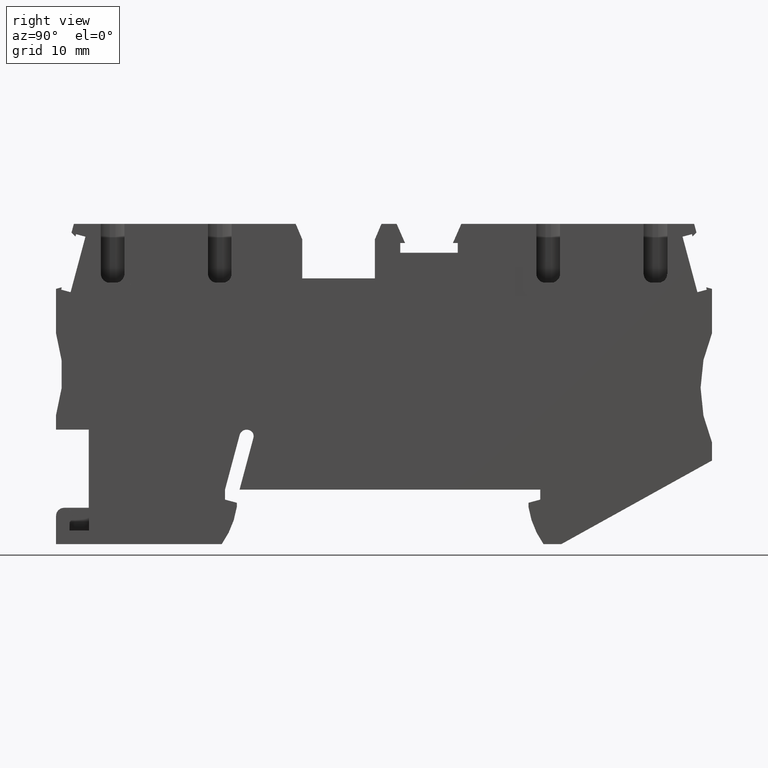
[diagram: clean part render]
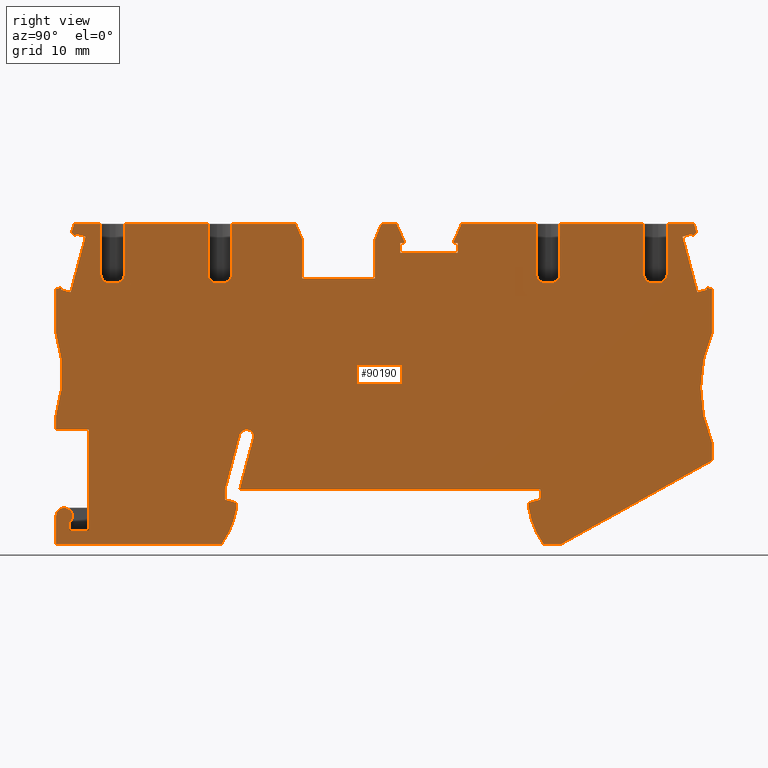
[diagram: same view with one face highlighted and labeled with its STEP entity id]
A machine part, right view. The second image highlights one B-rep face of the part: STEP entity #90190.
In plain terms, the highlighted planar face has unit normal (1, -0, 0).
Its self-contained STEP definition (entity closure, byte-faithful):
#4920=CARTESIAN_POINT('',(0.0996055945110055,1.34043887101115E-11,
-3.05714372167745E-12));
#4930=DIRECTION('',(-0.121869343404765,0.99254615164137,
-1.4243280301214E-16));
#4940=VECTOR('',#4930,1.);
#4950=LINE('',#4920,#4940);
#4960=CARTESIAN_POINT('',(0.849796820884327,-6.10981723481752,
-1.17013918668792E-11));
#4970=VERTEX_POINT('',#4960);
#4980=CARTESIAN_POINT('',(0.47200185633097,-3.03292416474079,
-1.01989730774415E-11));
#4990=VERTEX_POINT('',#4980);
#5000=EDGE_CURVE('',#4970,#4990,#4950,.T.);
#6190=CARTESIAN_POINT('',(18.5799394874171,2.11222950000028,
-6.91335246068546E-12));
#6200=VERTEX_POINT('',#6190);
#6280=CARTESIAN_POINT('',(18.7139957651638,1.02042873318665,
-7.4465475953517E-12));
#6290=VERTEX_POINT('',#6280);
#6320=CARTESIAN_POINT('',(18.8392886590992,1.34043887101098E-11,
1.23938216590528E-12));
#6330=DIRECTION('',(0.121869343405148,-0.992546151641323,
1.42432803101199E-16));
#6340=VECTOR('',#6330,1.);
#6350=LINE('',#6320,#6340);
#6360=EDGE_CURVE('',#6200,#6290,#6350,.T.);
#6590=CARTESIAN_POINT('',(20.0467569920886,0.833121357895516,
-7.48401597946455E-12));
#6600=VERTEX_POINT('',#6590);
#6630=CARTESIAN_POINT('',(-1.08928421838074E-11,3.65050931864335,
-2.97773787117071E-12));
#6640=DIRECTION('',(0.990268068741556,-0.139173100960171,
2.23144985081254E-13));
#6650=VECTOR('',#6640,1.);
#6660=LINE('',#6630,#6650);
#6670=EDGE_CURVE('',#6290,#6600,#6660,.T.);
#6920=CARTESIAN_POINT('',(2.04257352465865,-3.51594034939669,
-1.03725461567974E-11));
#6930=VERTEX_POINT('',#6920);
#6960=CARTESIAN_POINT('',(1.36529339280604,-2.92324175567689,
-1.01080197414662E-11));
#6970=DIRECTION('',(-1.01679311254639E-12,-5.31871749092456E-13,1.));
#6980=DIRECTION('',(0.992546151641275,0.12186934340553,
1.07403295171113E-12));
#6990=AXIS2_PLACEMENT_3D('',#6960,#6970,#6980);
#7000=CIRCLE('',#6990,0.89999999999984);
#7010=EDGE_CURVE('',#6930,#4990,#7000,.T.);
#7240=CARTESIAN_POINT('',(2.88740923988853,6.83499391212256,
-5.23007061684476E-12));
#7250=VERTEX_POINT('',#7240);
#7280=CARTESIAN_POINT('',(3.72664096616088,1.34043887101112E-11,
-2.22555807981994E-12));
#7290=DIRECTION('',(-0.121869343405148,0.992546151641323,
-1.42432803101199E-16));
#7300=VECTOR('',#7290,1.);
#7310=LINE('',#7280,#7300);
#7320=CARTESIAN_POINT('',(4.24015895168713,-4.18226837110801,
-1.06107162930473E-11));
#7330=VERTEX_POINT('',#7320);
#7340=EDGE_CURVE('',#7330,#7250,#7310,.T.);
#7640=CARTESIAN_POINT('',(-0.685756599584927,6.39626431348954,
-5.59388392954687E-12));
#7650=VERTEX_POINT('',#7640);
#7680=CARTESIAN_POINT('',(-1.08928421838074E-11,6.48046463645451,
-2.89847696423797E-12));
#7690=DIRECTION('',(-0.992546151641323,-0.121869343405148,
-2.30978523078026E-13));
#7700=VECTOR('',#7690,1.);
#7710=LINE('',#7680,#7700);
#7720=EDGE_CURVE('',#7250,#7650,#7710,.T.);
#7890=CARTESIAN_POINT('',(0.0996059055641723,1.34043887101115E-11,
-3.05714365036098E-12));
#7900=DIRECTION('',(-0.12186934340515,0.992546151641322,
-1.42432803101704E-16));
#7910=VECTOR('',#7900,1.);
#7920=LINE('',#7890,#7910);
#7930=CARTESIAN_POINT('',(-0.880747549032938,7.98433815611375,
-7.77407459178503E-13));
#7940=VERTEX_POINT('',#7930);
#7950=EDGE_CURVE('',#7650,#7940,#7920,.T.);
#8260=CARTESIAN_POINT('',(-1.97757163967912,16.9172535208853,
-7.78689354406393E-13));
#8270=VERTEX_POINT('',#8260);
#8300=CARTESIAN_POINT('',(-15.6315898433489,10.706956676623,
-6.36402238779349E-12));
#8310=DIRECTION('',(-2.29274202385084E-13,-2.80078298176235E-14,1.));
#8320=DIRECTION('',(0.992546151641323,0.121869343405148,
2.30978523078026E-13));
#8330=AXIS2_PLACEMENT_3D('',#8300,#8310,#8320);
#8340=CIRCLE('',#8330,15.);
#8350=EDGE_CURVE('',#7940,#8270,#8340,.T.);
#8570=CARTESIAN_POINT('',(-2.57472175472289,21.7806509273066,
1.91928178863762E-12));
#8580=VERTEX_POINT('',#8570);
#8610=CARTESIAN_POINT('',(0.0996059055642893,1.34043887101115E-11,
-3.05714365036095E-12));
#8620=DIRECTION('',(-0.12186934340515,0.992546151641322,
-1.42432803101704E-16));
#8630=VECTOR('',#8620,1.);
#8640=LINE('',#8610,#8630);
#8650=EDGE_CURVE('',#8270,#8580,#8640,.T.);
#8830=CARTESIAN_POINT('',(-1.0892842183807E-11,22.8209060404169,
-2.44081666225094E-12));
#8840=DIRECTION('',(-0.927183854569499,-0.374606593409201,
-2.23071256437514E-13));
#8850=VECTOR('',#8840,1.);
#8860=LINE('',#8830,#8850);
#8870=CARTESIAN_POINT('',(-1.96144346353966,22.0284314406748,
2.06683047413682E-12));
#8880=VERTEX_POINT('',#8870);
#8890=EDGE_CURVE('',#8880,#8580,#8860,.T.);
#9180=CARTESIAN_POINT('',(-0.93975452603534,21.6098586805649,
1.90242329370994E-12));
#9190=VERTEX_POINT('',#9180);
#9220=CARTESIAN_POINT('',(-1.08928421838071E-11,21.4777847950618,
-2.47843457351528E-12));
#9230=DIRECTION('',(-0.990268068741539,0.13917310096029,
-2.23144985081247E-13));
#9240=VECTOR('',#9230,1.);
#9250=LINE('',#9220,#9240);
#9260=CARTESIAN_POINT('',(-1.99934135958794,21.7587738985923,
1.93221183022983E-12));
#9270=VERTEX_POINT('',#9260);
#9280=EDGE_CURVE('',#9190,#9270,#9250,.T.);
#9550=CARTESIAN_POINT('',(-5.0573376054108,1.3404388710112E-11,
-4.2394977605847E-12));
#9560=DIRECTION('',(0.139173100960779,0.990268068741471,
5.96440612593796E-14));
#9570=VECTOR('',#9560,1.);
#9580=LINE('',#9550,#9570);
#9590=EDGE_CURVE('',#9270,#8880,#9580,.T.);
#9810=CARTESIAN_POINT('',(-0.0594846624616271,27.8733042153554,
5.02926535259254E-12));
#9820=VERTEX_POINT('',#9810);
#9850=CARTESIAN_POINT('',(-3.9768221028052,1.34043887101119E-11,
-3.99176343056008E-12));
#9860=DIRECTION('',(0.139173100960265,0.990268068741543,
5.96440612592639E-14));
#9870=VECTOR('',#9860,1.);
#9880=LINE('',#9850,#9870);
#9890=EDGE_CURVE('',#9190,#9820,#9880,.T.);
#10070=CARTESIAN_POINT('',(-5.59254621884186,1.3404388710112E-11,
-4.36220728853874E-12));
#10080=DIRECTION('',(-0.139173100960491,-0.990268068741511,
-5.96440612593149E-14));
#10090=VECTOR('',#10080,1.);
#10100=LINE('',#10070,#10090);
#10110=CARTESIAN_POINT('',(-1.50051398890416,29.1163222318416,
5.58318439857515E-12));
#10120=VERTEX_POINT('',#10110);
#10130=CARTESIAN_POINT('',(-1.6392251060262,28.1293413489164,
5.09046304913553E-12));
#10140=VERTEX_POINT('',#10130);
#10150=EDGE_CURVE('',#10120,#10140,#10100,.T.);
#10510=CARTESIAN_POINT('',(13.8245185472176,25.4566955825832,
4.40932910289932E-12));
#10520=VERTEX_POINT('',#10510);
#10550=CARTESIAN_POINT('',(16.9502077363593,1.34043887101105E-11,
-1.89071336354901E-11));
#10560=DIRECTION('',(-0.121869343405031,0.992546151641337,
1.32861270455409E-15));
#10570=VECTOR('',#10560,1.);
#10580=LINE('',#10550,#10570);
#10590=CARTESIAN_POINT('',(13.1542371584895,30.9156994166138,
7.07530477621219E-12));
#10600=VERTEX_POINT('',#10590);
#10610=EDGE_CURVE('',#10520,#10600,#10580,.T.);
#11140=CARTESIAN_POINT('',(14.9389340422461,24.5860187743828,
4.02566958960332E-12));
#11150=VERTEX_POINT('',#11140);
#13080=CARTESIAN_POINT('',(15.5344617332345,24.6591403803883,
4.56970599959838E-12));
#13090=VERTEX_POINT('',#13080);
#13760=CARTESIAN_POINT('',(16.4051385414707,25.7735558754347,
5.64505687412114E-12));
#13770=VERTEX_POINT('',#13760);
#13800=CARTESIAN_POINT('',(15.4125923898294,25.6516865320296,
1.17217718287625E-12));
#13810=DIRECTION('',(-1.06586665856897E-12,-1.32199789835444E-13,1.));
#13820=DIRECTION('',(1.,4.16333633072279E-17,1.06586665856897E-12));
#13830=AXIS2_PLACEMENT_3D('',#13800,#13810,#13820);
#13840=CIRCLE('',#13830,1.);
#13850=EDGE_CURVE('',#13090,#13770,#13840,.T.);
#14070=CARTESIAN_POINT('',(15.734857152757,31.2325597094668,
7.33805885791961E-12));
#14080=VERTEX_POINT('',#14070);
#14110=CARTESIAN_POINT('',(19.5697332825523,1.34043887101102E-11,
-1.61150686945334E-11));
#14120=DIRECTION('',(0.121869343405031,-0.992546151641337,
-1.32861270455409E-15));
#14130=VECTOR('',#14120,1.);
#14140=LINE('',#14110,#14130);
#14150=EDGE_CURVE('',#14080,#13770,#14140,.T.);
#22870=CARTESIAN_POINT('',(-1.08928421838071E-11,22.7517483176637,
-2.44275361998039E-12));
#22880=DIRECTION('',(-0.992546151641501,-0.121869343403698,
-2.30978523078026E-13));
#22890=VECTOR('',#22880,1.);
#22900=LINE('',#22870,#22890);
#22910=EDGE_CURVE('',#13090,#11150,#22900,.T.);
#23870=CARTESIAN_POINT('',(14.8170646988446,25.5785649259865,
1.03359006902944E-12));
#23880=DIRECTION('',(-1.06586665856897E-12,-1.32199789835444E-13,1.));
#23890=DIRECTION('',(1.,4.16333633072279E-17,1.06586665856897E-12));
#23900=AXIS2_PLACEMENT_3D('',#23870,#23880,#23890);
#23910=CIRCLE('',#23900,1.);
#23920=EDGE_CURVE('',#10520,#11150,#23910,.T.);
#24160=CARTESIAN_POINT('',(2.11247365141296,24.0186372927825,
2.24385608828192E-12));
#24170=VERTEX_POINT('',#24160);
#24200=CARTESIAN_POINT('',(5.06159179594505,1.34043887101119E-11,
-3.16787329268376E-11));
#24210=DIRECTION('',(-0.121869343405031,0.992546151641337,
1.32861270455409E-15));
#24220=VECTOR('',#24210,1.);
#24230=LINE('',#24200,#24220);
#24240=CARTESIAN_POINT('',(1.44219256912173,29.4776411644345,
5.88280548230931E-12));
#24250=VERTEX_POINT('',#24240);
#24260=EDGE_CURVE('',#24170,#24250,#24230,.T.);
#24790=CARTESIAN_POINT('',(3.22688945289093,23.1479605222216,
-1.60147458294547E-12));
#24800=VERTEX_POINT('',#24790);
#26730=CARTESIAN_POINT('',(3.82241714387358,23.2210821282714,
2.89383400005284E-12));
#26740=VERTEX_POINT('',#26730);
#27410=CARTESIAN_POINT('',(4.69309395211675,24.3354976232614,
3.47958389070599E-12));
#27420=VERTEX_POINT('',#27410);
#27450=CARTESIAN_POINT('',(3.7005474940391,24.2136282422307,
-1.55336946075288E-12));
#27460=DIRECTION('',(-1.06586665856897E-12,-1.32199789835444E-13,1.));
#27470=DIRECTION('',(1.,4.16333633072279E-17,1.06586665856897E-12));
#27480=AXIS2_PLACEMENT_3D('',#27450,#27460,#27470);
#27490=CIRCLE('',#27480,1.);
#27500=EDGE_CURVE('',#26740,#27420,#27490,.T.);
#27740=CARTESIAN_POINT('',(4.02281256338922,29.7945014572876,
6.14555956401672E-12));
#27750=VERTEX_POINT('',#27740);
#27780=CARTESIAN_POINT('',(7.68111734213804,1.34043887101116E-11,
-2.88866679858808E-11));
#27790=DIRECTION('',(0.121869343405031,-0.992546151641337,
-1.32861270455409E-15));
#27800=VECTOR('',#27790,1.);
#27810=LINE('',#27780,#27800);
#27820=EDGE_CURVE('',#27750,#27420,#27810,.T.);
#36520=CARTESIAN_POINT('',(-1.08928421838071E-11,22.7517483176697,
-2.44275361998022E-12));
#36530=DIRECTION('',(-0.992546151641501,-0.121869343403698,
-2.30978523078026E-13));
#36540=VECTOR('',#36530,1.);
#36550=LINE('',#36520,#36540);
#36560=EDGE_CURVE('',#26740,#24800,#36550,.T.);
#37520=CARTESIAN_POINT('',(3.10501980305429,24.1405066361876,
-1.6919565745997E-12));
#37530=DIRECTION('',(-1.06586665856897E-12,-1.32199789835444E-13,1.));
#37540=DIRECTION('',(1.,4.16333633072279E-17,1.06586665856897E-12));
#37550=AXIS2_PLACEMENT_3D('',#37520,#37530,#37540);
#37560=CIRCLE('',#37550,1.);
#37570=EDGE_CURVE('',#24170,#24800,#37560,.T.);
#38430=CARTESIAN_POINT('',(-1.08928421838069E-11,29.3005621830963,
-2.25933555573005E-12));
#38440=DIRECTION('',(0.992546151641338,0.121869343405022,
2.30978523078026E-13));
#38450=VECTOR('',#38440,1.);
#38460=LINE('',#38430,#38450);
#38470=CARTESIAN_POINT('',(22.7387593504414,32.0925307654155,
8.05118356996909E-12));
#38480=VERTEX_POINT('',#38470);
#38490=EDGE_CURVE('',#14080,#38480,#38460,.T.);
#38560=CARTESIAN_POINT('',(-1.08928421838069E-11,29.3005621830963,
-2.25933555573005E-12));
#38570=DIRECTION('',(0.992546151641338,0.121869343405022,
2.30978523078026E-13));
#38580=VECTOR('',#38570,1.);
#38590=LINE('',#38560,#38580);
#38600=EDGE_CURVE('',#27750,#10600,#38590,.T.);
#38670=CARTESIAN_POINT('',(-1.08928421838069E-11,29.3005621830963,
-2.25933555573005E-12));
#38680=DIRECTION('',(0.992546151641338,0.121869343405022,
2.30978523078026E-13));
#38690=VECTOR('',#38680,1.);
#38700=LINE('',#38670,#38690);
#38710=EDGE_CURVE('',#10120,#24250,#38700,.T.);
#41830=CARTESIAN_POINT('',(23.6590813655575,30.4927653966524,
7.29976577700985E-12));
#41840=VERTEX_POINT('',#41830);
#41870=CARTESIAN_POINT('',(41.2011308712254,1.34043887101077E-11,
6.36637570295161E-12));
#41880=DIRECTION('',(-0.498657173381252,0.866799298243498,
-9.00520584593472E-14));
#41890=VECTOR('',#41880,1.);
#41900=LINE('',#41870,#41890);
#41910=EDGE_CURVE('',#41840,#38480,#41900,.T.);
#42980=CARTESIAN_POINT('',(24.1831195421994,26.2248169445963,
5.2154575233309E-12));
#42990=VERTEX_POINT('',#42980);
#43020=CARTESIAN_POINT('',(27.4031221754992,1.3404388710109E-11,
3.20284826473653E-12));
#43030=DIRECTION('',(0.12186934340515,-0.992546151641322,
1.42432803102007E-16));
#43040=VECTOR('',#43030,1.);
#43050=LINE('',#43020,#43040);
#43060=EDGE_CURVE('',#41840,#42990,#43050,.T.);
#43860=CARTESIAN_POINT('',(32.1234887553298,27.1997716918374,
6.02393162089264E-12));
#43870=VERTEX_POINT('',#43860);
#43900=CARTESIAN_POINT('',(-1.0892842183807E-11,23.2555032303435,
-2.42864453811626E-12));
#43910=DIRECTION('',(-0.992546151641323,-0.121869343405148,
-2.30978523078026E-13));
#43920=VECTOR('',#43910,1.);
#43930=LINE('',#43900,#43920);
#43940=EDGE_CURVE('',#43870,#42990,#43930,.T.);
#44630=CARTESIAN_POINT('',(31.5994505786879,31.4677201438932,
8.10823987457142E-12));
#44640=VERTEX_POINT('',#44630);
#44670=CARTESIAN_POINT('',(35.4632007791698,1.34043887101082E-11,
5.0508163577542E-12));
#44680=DIRECTION('',(-0.121869343405153,0.992546151641322,
-1.42432803102512E-16));
#44690=VECTOR('',#44680,1.);
#44700=LINE('',#44670,#44690);
#44710=EDGE_CURVE('',#43870,#44640,#44700,.T.);
#45070=CARTESIAN_POINT('',(32.1054168262274,33.2426116907092,
9.00487977056755E-12));
#45080=VERTEX_POINT('',#45070);
#45110=CARTESIAN_POINT('',(22.628984575634,1.34043887101094E-11,
2.1082616744508E-12));
#45120=DIRECTION('',(-0.274147194873168,-0.961687743263464,
-8.97896660916719E-14));
#45130=VECTOR('',#45120,1.);
#45140=LINE('',#45110,#45130);
#45150=EDGE_CURVE('',#45080,#44640,#45140,.T.);
#45390=CARTESIAN_POINT('',(33.7648010461116,33.4463584535171,
9.17383528430631E-12));
#45400=VERTEX_POINT('',#45390);
#45430=CARTESIAN_POINT('',(-1.08928421838069E-11,29.3005621830908,
-2.2593355557302E-12));
#45440=DIRECTION('',(-0.992546151641308,-0.121869343405268,
-2.30978523078026E-13));
#45450=VECTOR('',#45440,1.);
#45460=LINE('',#45430,#45450);
#45470=EDGE_CURVE('',#45400,#45080,#45460,.T.);
#45650=CARTESIAN_POINT('',(53.6422195780284,1.34043887101065E-11,
9.21879639300595E-12));
#45660=DIRECTION('',(0.51089298590022,-0.859644320028905,
9.30578100273504E-14));
#45670=VECTOR('',#45660,1.);
#45680=LINE('',#45650,#45670);
#45690=CARTESIAN_POINT('',(34.9394936524314,31.4697843867907,
8.24697884341367E-12));
#45700=VERTEX_POINT('',#45690);
#45710=EDGE_CURVE('',#45400,#45700,#45680,.T.);
#46000=CARTESIAN_POINT('',(66.6435147722339,36.5134075821148,
1.20428886883398E-11));
#46010=VERTEX_POINT('',#46000);
#46090=CARTESIAN_POINT('',(66.2667353146138,36.0311518681531,
1.17893954698316E-11));
#46100=VERTEX_POINT('',#46090);
#46130=CARTESIAN_POINT('',(38.1161142534772,1.3404388710108E-11,
5.65906097857268E-12));
#46140=DIRECTION('',(0.615661475326723,0.788010753605891,
1.6322576477621E-13));
#46150=VECTOR('',#46140,1.);
#46160=LINE('',#46130,#46150);
#46170=EDGE_CURVE('',#46100,#46010,#46160,.T.);
#46390=CARTESIAN_POINT('',(66.1647270842994,36.2836310979452,
1.19097691238385E-11));
#46400=VERTEX_POINT('',#46390);
#46430=CARTESIAN_POINT('',(80.8242656163659,1.3404388710104E-11,
1.54509383176404E-11));
#46440=DIRECTION('',(0.374606593415343,-0.927183854567018,
5.99192203051345E-14));
#46450=VECTOR('',#46440,1.);
#46460=LINE('',#46430,#46450);
#46470=EDGE_CURVE('',#46400,#46100,#46460,.T.);
#46690=CARTESIAN_POINT('',(65.172640359912,35.88280204299,
1.16710828794508E-11));
#46700=VERTEX_POINT('',#46690);
#46730=CARTESIAN_POINT('',(-1.08928421838073E-11,9.55134613066747,
-2.81246823795797E-12));
#46740=DIRECTION('',(0.927183854566833,0.3746065934158,
2.23071256437088E-13));
#46750=VECTOR('',#46740,1.);
#46760=LINE('',#46730,#46750);
#46770=EDGE_CURVE('',#46700,#46400,#46760,.T.);
#47010=CARTESIAN_POINT('',(69.6842605088245,25.7162201147376,
6.84065700769258E-12));
#47020=VERTEX_POINT('',#47010);
#47050=CARTESIAN_POINT('',(72.8418153036933,1.34043887101047E-11,
1.36207683891238E-11));
#47060=DIRECTION('',(0.121869343405147,-0.992546151641323,
1.42432803101199E-16));
#47070=VECTOR('',#47060,1.);
#47080=LINE('',#47050,#47070);
#47090=CARTESIAN_POINT('',(69.0871103937809,30.5796175211573,
9.21576051913208E-12));
#47100=VERTEX_POINT('',#47090);
#47110=EDGE_CURVE('',#47100,#47020,#47080,.T.);
#47340=CARTESIAN_POINT('',(72.8418153036932,1.34043887101047E-11,
1.36207683891238E-11));
#47350=DIRECTION('',(0.121869343405147,-0.992546151641323,
1.42432803101199E-16));
#47360=VECTOR('',#47350,1.);
#47370=LINE('',#47340,#47360);
#47380=CARTESIAN_POINT('',(71.1466926296862,13.8056662950415,
1.02398281137703E-12));
#47390=VERTEX_POINT('',#47380);
#47400=CARTESIAN_POINT('',(71.3904313164962,11.8205739917615,
5.45371119924155E-14));
#47410=VERTEX_POINT('',#47400);
#47420=EDGE_CURVE('',#47390,#47410,#47370,.T.);
#47750=CARTESIAN_POINT('',(84.0607301811557,21.4363696780354,
1.67933623431299E-11));
#47760=DIRECTION('',(-2.29274202385084E-13,-2.80078298176235E-14,1.));
#47770=DIRECTION('',(0.992546151641323,0.121869343405148,
2.30978523078026E-13));
#47780=AXIS2_PLACEMENT_3D('',#47750,#47760,#47770);
#47790=CIRCLE('',#47780,15.);
#47800=EDGE_CURVE('',#47020,#47390,#47790,.T.);
#47970=CARTESIAN_POINT('',(-1.08928421838076E-11,-6.21415916432443,
-3.25402582724895E-12));
#47980=DIRECTION('',(-0.99254615164133,-0.12186934340509,
-2.30978523078026E-13));
#47990=VECTOR('',#47980,1.);
#48000=LINE('',#47970,#47990);
#48010=CARTESIAN_POINT('',(56.0528727208583,0.668268200050602,
-6.08071406551668E-12));
#48020=VERTEX_POINT('',#48010);
#48030=CARTESIAN_POINT('',(54.1087751513752,0.42956303362933,
-6.27865857991788E-12));
#48040=VERTEX_POINT('',#48030);
#48050=EDGE_CURVE('',#48020,#48040,#48000,.T.);
#48380=CARTESIAN_POINT('',(-1.08928421838083E-11,-40.0891165681335,
-4.20278986929409E-12));
#48390=DIRECTION('',(-0.808793328533599,-0.588092978804834,
-2.01906653361223E-13));
#48400=VECTOR('',#48390,1.);
#48410=LINE('',#48380,#48400);
#48420=EDGE_CURVE('',#47410,#48020,#48410,.T.);
#48650=CARTESIAN_POINT('',(51.9625327047074,4.29682788160478,
-4.99336190767874E-12));
#48660=VERTEX_POINT('',#48650);
#48690=CARTESIAN_POINT('',(61.1139937057322,6.84648698562329,
1.11234146442734E-11));
#48700=DIRECTION('',(2.29274202385084E-13,2.80078298176235E-14,-1.));
#48710=DIRECTION('',(-0.992546151641323,-0.121869343405148,
-2.30978523078026E-13));
#48720=AXIS2_PLACEMENT_3D('',#48690,#48700,#48710);
#48730=CIRCLE('',#48720,9.499999999999);
#48740=EDGE_CURVE('',#48040,#48660,#48730,.T.);
#48950=CARTESIAN_POINT('',(51.9074884597754,4.7451272812008,
-4.24001366299792E-12));
#48960=VERTEX_POINT('',#48950);
#48990=CARTESIAN_POINT('',(52.490116829421,1.34043887101066E-11,
8.95464895425332E-12));
#49000=DIRECTION('',(-0.121869343404462,0.992546151641407,
-1.42432802941862E-16));
#49010=VECTOR('',#49000,1.);
#49020=LINE('',#48990,#49010);
#49030=EDGE_CURVE('',#48660,#48960,#49020,.T.);
#49280=CARTESIAN_POINT('',(53.1553472271175,5.24929494934523,
-3.93979119717757E-12));
#49290=VERTEX_POINT('',#49280);
#49320=CARTESIAN_POINT('',(-1.08928421838078E-11,-16.2268593737846,
-3.5344598307304E-12));
#49330=DIRECTION('',(0.927183854566813,0.374606593415851,
2.23071256437085E-13));
#49340=VECTOR('',#49330,1.);
#49350=LINE('',#49320,#49340);
#49360=EDGE_CURVE('',#48960,#49290,#49350,.T.);
#49590=CARTESIAN_POINT('',(53.0212909493718,6.34109571615058,
-3.40659606251537E-12));
#49600=VERTEX_POINT('',#49590);
#49630=CARTESIAN_POINT('',(53.799879602521,1.34043887101065E-11,
9.2549437693695E-12));
#49640=DIRECTION('',(-0.121869343405148,0.992546151641323,
-1.42432803101199E-16));
#49650=VECTOR('',#49640,1.);
#49660=LINE('',#49630,#49650);
#49670=EDGE_CURVE('',#49290,#49600,#49660,.T.);
#49880=CARTESIAN_POINT('',(20.9898097165884,8.15460557622204,
-3.65683225944786E-12));
#49890=VERTEX_POINT('',#49880);
#49970=CARTESIAN_POINT('',(20.372227497343,8.94793178289034,
-3.77620858478633E-12));
#49980=VERTEX_POINT('',#49970);
#50010=CARTESIAN_POINT('',(20.296622068469,8.25202674689397,
1.80463248172479E-12));
#50020=DIRECTION('',(-2.29274202385084E-13,-2.80078298176235E-14,1.));
#50030=DIRECTION('',(0.992546151641323,0.121869343405148,
2.30978523078026E-13));
#50040=AXIS2_PLACEMENT_3D('',#50010,#50020,#50030);
#50050=CIRCLE('',#50040,0.700000000000238);
#50060=EDGE_CURVE('',#49890,#49980,#50050,.T.);
#50250=CARTESIAN_POINT('',(18.2830849904055,1.34043887101098E-11,
1.11185901340188E-12));
#50260=DIRECTION('',(0.139173100960267,0.990268068741543,
5.96440612592644E-14));
#50270=VECTOR('',#50260,1.);
#50280=LINE('',#50250,#50270);
#50290=CARTESIAN_POINT('',(19.4454516024174,8.27066819741553,
-4.03971978634816E-12));
#50300=VERTEX_POINT('',#50290);
#50310=EDGE_CURVE('',#6200,#50300,#50280,.T.);
#50570=CARTESIAN_POINT('',(20.2376660574106,8.15932971664692,
1.7885191466658E-12));
#50580=DIRECTION('',(-2.29274202385084E-13,-2.80078298176235E-14,1.));
#50590=DIRECTION('',(0.992546151641323,0.121869343405148,
2.30978523078026E-13));
#50600=AXIS2_PLACEMENT_3D('',#50570,#50580,#50590);
#50610=CIRCLE('',#50600,0.80000000000001);
#50620=EDGE_CURVE('',#49980,#50300,#50610,.T.);
#50830=CARTESIAN_POINT('',(20.1680133300438,2.30722044944016,
-6.75165764117721E-12));
#50840=VERTEX_POINT('',#50830);
#50890=CARTESIAN_POINT('',(19.8437546422387,1.34043887101097E-11,
1.46968030301255E-12));
#50900=DIRECTION('',(0.139173100960126,0.990268068741562,
5.96440612592325E-14));
#50910=VECTOR('',#50900,1.);
#50920=LINE('',#50890,#50910);
#50930=EDGE_CURVE('',#50840,#49890,#50920,.T.);
#51100=CARTESIAN_POINT('',(-1.08928421838075E-11,-0.169100211574526,
-3.08471684486283E-12));
#51110=DIRECTION('',(-0.992546151641323,-0.121869343405148,
-2.30978523078026E-13));
#51120=VECTOR('',#51110,1.);
#51130=LINE('',#51100,#51120);
#51140=EDGE_CURVE('',#49600,#50840,#51130,.T.);
#51350=CARTESIAN_POINT('',(-1.08928421838067E-11,40.2891776825678,
-1.95156828288955E-12));
#51360=DIRECTION('',(0.990268068742577,-0.139173100952909,
2.23144985081692E-13));
#51370=VECTOR('',#51360,1.);
#51380=LINE('',#51350,#51370);
#51390=CARTESIAN_POINT('',(68.4321055573427,30.6716724475996,
9.23417489997421E-12));
#51400=VERTEX_POINT('',#51390);
#51410=EDGE_CURVE('',#51400,#47100,#51380,.T.);
#51700=CARTESIAN_POINT('',(68.5341137876558,30.4191932178121,
9.11380124596958E-12));
#51710=VERTEX_POINT('',#51700);
#51740=CARTESIAN_POINT('',(-1.08928421838074E-11,2.72961388318219,
-3.00353015380693E-12));
#51750=DIRECTION('',(-0.927183854566592,-0.374606593416397,
-2.23071256437049E-13));
#51760=VECTOR('',#51750,1.);
#51770=LINE('',#51740,#51760);
#51780=CARTESIAN_POINT('',(67.5420270632685,30.0183641628561,
8.87511500158151E-12));
#51790=VERTEX_POINT('',#51780);
#51800=EDGE_CURVE('',#51710,#51790,#51770,.T.);
#52040=CARTESIAN_POINT('',(80.8242656164294,1.3404388710104E-11,
1.5450938317655E-11));
#52050=DIRECTION('',(0.374606593416855,-0.927183854566407,
5.99192203054982E-14));
#52060=VECTOR('',#52050,1.);
#52070=LINE('',#52040,#52060);
#52080=EDGE_CURVE('',#51400,#51710,#52070,.T.);
#52280=CARTESIAN_POINT('',(79.6702334417338,1.34043887101041E-11,
1.51863485112749E-11));
#52290=DIRECTION('',(-0.374606593416089,0.927183854566717,
-5.99192203053141E-14));
#52300=VECTOR('',#52290,1.);
#52310=LINE('',#52280,#52300);
#52320=EDGE_CURVE('',#51790,#46700,#52310,.T.);
#52510=CARTESIAN_POINT('',(81.3958890300289,1.3404388710104E-11,
1.55819968198726E-11));
#52520=DIRECTION('',(0.374606593416301,-0.927183854566631,
5.9919220305365E-14));
#52530=VECTOR('',#52520,1.);
#52540=LINE('',#52510,#52530);
#52550=CARTESIAN_POINT('',(66.2701516819847,37.4375136583402,
1.24834715639164E-11));
#52560=VERTEX_POINT('',#52550);
#52570=EDGE_CURVE('',#52560,#46010,#52540,.T.);
#53520=CARTESIAN_POINT('',(-1.08928421838069E-11,29.3005621830898,
-2.25933555573023E-12));
#53530=DIRECTION('',(-0.992546151641308,-0.121869343405262,
-2.30978523078026E-13));
#53540=VECTOR('',#53530,1.);
#53550=LINE('',#53520,#53540);
#53560=CARTESIAN_POINT('',(63.3274451239588,37.0761947257466,
1.21838504801819E-11));
#53570=VERTEX_POINT('',#53560);
#53580=EDGE_CURVE('',#52560,#53570,#53550,.T.);
#53980=CARTESIAN_POINT('',(60.7468251296915,36.7593344328929,
1.19210963984742E-11));
#53990=VERTEX_POINT('',#53980);
#54020=CARTESIAN_POINT('',(-1.08928421838069E-11,29.3005621830898,
-2.25933555573023E-12));
#54030=DIRECTION('',(-0.992546151641308,-0.121869343405262,
-2.30978523078026E-13));
#54040=VECTOR('',#54030,1.);
#54050=LINE('',#54020,#54040);
#54060=CARTESIAN_POINT('',(51.6154005345914,35.6381364735645,
1.09913511862776E-11));
#54070=VERTEX_POINT('',#54060);
#54080=EDGE_CURVE('',#53990,#54070,#54050,.T.);
#54480=CARTESIAN_POINT('',(49.034780540324,35.3212761807108,
1.07285971045699E-11));
#54490=VERTEX_POINT('',#54480);
#54520=CARTESIAN_POINT('',(-1.08928421838069E-11,29.3005621830898,
-2.25933555573023E-12));
#54530=DIRECTION('',(-0.992546151641308,-0.121869343405262,
-2.30978523078026E-13));
#54540=VECTOR('',#54530,1.);
#54550=LINE('',#54520,#54540);
#54560=CARTESIAN_POINT('',(40.8310435482217,34.3139839363716,
9.8933073739161E-12));
#54570=VERTEX_POINT('',#54560);
#54580=EDGE_CURVE('',#54490,#54570,#54550,.T.);
#58480=CARTESIAN_POINT('',(63.9977265126706,31.6171908917295,
1.04908484963908E-11));
#58490=VERTEX_POINT('',#58480);
#58590=CARTESIAN_POINT('',(67.879829413313,1.34043887101046E-11,
3.53769602920925E-11));
#58600=DIRECTION('',(0.121869343405264,-0.992546151641308,
-1.32167381059617E-15));
#58610=VECTOR('',#58600,1.);
#58620=LINE('',#58590,#58610);
#58630=EDGE_CURVE('',#53570,#58490,#58620,.T.);
#59630=CARTESIAN_POINT('',(63.1270497044542,30.5027753966469,
1.23382909796304E-11));
#59640=VERTEX_POINT('',#59630);
#60230=CARTESIAN_POINT('',(62.5315220134494,30.4296537906402,
9.35486206455087E-12));
#60240=VERTEX_POINT('',#60230);
#67310=CARTESIAN_POINT('',(-1.08928421838071E-11,22.7517483176981,
-2.44275361997942E-12));
#67320=DIRECTION('',(0.992546151641531,0.121869343403448,
2.30978523078026E-13));
#67330=VECTOR('',#67320,1.);
#67340=LINE('',#67310,#67330);
#67350=EDGE_CURVE('',#60240,#59640,#67340,.T.);
#70800=CARTESIAN_POINT('',(62.4096526700445,31.4221999422815,
1.21090102506209E-11));
#70810=DIRECTION('',(1.06586665856897E-12,1.32199789835444E-13,-1.));
#70820=DIRECTION('',(-0.970295726276058,-0.241921895599423,
-1.06618788734445E-12));
#70830=AXIS2_PLACEMENT_3D('',#70800,#70810,#70820);
#70840=CIRCLE('',#70830,1.);
#70850=CARTESIAN_POINT('',(61.4171065184031,31.3003305988765,
8.28214703565182E-12));
#70860=VERTEX_POINT('',#70850);
#70870=EDGE_CURVE('',#60240,#70860,#70840,.T.);
#71120=CARTESIAN_POINT('',(65.2603038671199,1.34043887101049E-11,
3.25848953511357E-11));
#71130=DIRECTION('',(-0.121869343405264,0.992546151641308,
1.32167381059617E-15));
#71140=VECTOR('',#71130,1.);
#71150=LINE('',#71120,#71140);
#71160=EDGE_CURVE('',#70860,#53990,#71150,.T.);
#71450=CARTESIAN_POINT('',(63.0051803610293,31.4953215483245,
1.22475973644677E-11));
#71460=DIRECTION('',(1.06586665856897E-12,1.32199789835444E-13,-1.));
#71470=DIRECTION('',(-0.970295726276058,-0.241921895599423,
-1.06618788734445E-12));
#71480=AXIS2_PLACEMENT_3D('',#71450,#71460,#71470);
#71490=CIRCLE('',#71480,1.);
#71500=EDGE_CURVE('',#58490,#59640,#71490,.T.);
#71740=CARTESIAN_POINT('',(52.2856819233035,30.1791326395446,
9.29834920248519E-12));
#71750=VERTEX_POINT('',#71740);
#71850=CARTESIAN_POINT('',(55.9912134728984,1.3404388710106E-11,
2.27048367234807E-11));
#71860=DIRECTION('',(0.121869343405264,-0.992546151641308,
-1.32167381059617E-15));
#71870=VECTOR('',#71860,1.);
#71880=LINE('',#71850,#71870);
#71890=EDGE_CURVE('',#54070,#71750,#71880,.T.);
#72890=CARTESIAN_POINT('',(51.4150051150691,29.0647171444741,
7.73959340106941E-12));
#72900=VERTEX_POINT('',#72890);
#73490=CARTESIAN_POINT('',(50.8194774240852,28.9915955384323,
7.67895784375295E-12));
#73500=VERTEX_POINT('',#73490);
#80570=CARTESIAN_POINT('',(-1.08928421838071E-11,22.7517483176909,
-2.44275361997963E-12));
#80580=DIRECTION('',(0.992546151641531,0.121869343403448,
2.30978523078026E-13));
#80590=VECTOR('',#80580,1.);
#80600=LINE('',#80570,#80590);
#80610=EDGE_CURVE('',#73500,#72900,#80600,.T.);
#84060=CARTESIAN_POINT('',(50.6976080806774,29.9841416900967,
9.38346367830022E-12));
#84070=DIRECTION('',(1.06586665856897E-12,1.32199789835444E-13,-1.));
#84080=DIRECTION('',(-0.970295726276058,-0.241921895599423,
-1.06618788734445E-12));
#84090=AXIS2_PLACEMENT_3D('',#84060,#84070,#84080);
#84100=CIRCLE('',#84090,1.);
#84110=CARTESIAN_POINT('',(49.705061929036,29.8622723466917,
7.08964774174619E-12));
#84120=VERTEX_POINT('',#84110);
#84130=EDGE_CURVE('',#73500,#84120,#84100,.T.);
#84380=CARTESIAN_POINT('',(53.3716879267053,1.34043887101063E-11,
1.99127717825239E-11));
#84390=DIRECTION('',(-0.121869343405264,0.992546151641308,
1.32167381059617E-15));
#84400=VECTOR('',#84390,1.);
#84410=LINE('',#84380,#84400);
#84420=EDGE_CURVE('',#84120,#54490,#84410,.T.);
#84710=CARTESIAN_POINT('',(51.2931357716622,30.0572632961396,
9.52205079214704E-12));
#84720=DIRECTION('',(1.06586665856897E-12,1.32199789835444E-13,-1.));
#84730=DIRECTION('',(-0.970295726276058,-0.241921895599423,
-1.06618788734445E-12));
#84740=AXIS2_PLACEMENT_3D('',#84710,#84720,#84730);
#84750=CIRCLE('',#84740,1.);
#84760=EDGE_CURVE('',#71750,#72900,#84750,.T.);
#84950=CARTESIAN_POINT('',(30.5211237682747,1.34043887101087E-11,
3.91772559295556E-12));
#84960=DIRECTION('',(0.287750497361314,0.957705409438789,
9.2797015891406E-14));
#84970=VECTOR('',#84960,1.);
#84980=LINE('',#84950,#84970);
#84990=CARTESIAN_POINT('',(40.1694208776352,32.1119387046915,
8.779480617603E-12));
#85000=VERTEX_POINT('',#84990);
#85010=EDGE_CURVE('',#85000,#54570,#84980,.T.);
#85250=CARTESIAN_POINT('',(-1.0892842183807E-11,26.1017184872672,
-2.34892822557601E-12));
#85260=DIRECTION('',(-0.99254615164133,-0.12186934340509,
-2.30978523078026E-13));
#85270=VECTOR('',#85260,1.);
#85280=LINE('',#85250,#85270);
#85290=CARTESIAN_POINT('',(40.8237846670433,31.1142489620038,
8.31417619802935E-12));
#85300=VERTEX_POINT('',#85290);
#85310=CARTESIAN_POINT('',(34.5459302579117,30.3434253649666,
7.67497636464473E-12));
#85320=VERTEX_POINT('',#85310);
#85330=EDGE_CURVE('',#85300,#85320,#85280,.T.);
#85690=CARTESIAN_POINT('',(34.4155300604682,31.4054497472224,
8.19362981381601E-12));
#85700=VERTEX_POINT('',#85690);
#85730=CARTESIAN_POINT('',(-1.0892842183807E-11,27.1797540005058,
-2.31873479038387E-12));
#85740=DIRECTION('',(0.992546151641323,0.121869343405148,
2.30978523078026E-13));
#85750=VECTOR('',#85740,1.);
#85760=LINE('',#85730,#85750);
#85770=EDGE_CURVE('',#85700,#45700,#85760,.T.);
#85960=CARTESIAN_POINT('',(38.2716344176375,1.3404388710108E-11,
5.69471774016532E-12));
#85970=DIRECTION('',(-0.121869343405148,0.992546151641323,
-1.42432803101199E-16));
#85980=VECTOR('',#85970,1.);
#85990=LINE('',#85960,#85980);
#86000=EDGE_CURVE('',#85320,#85700,#85990,.T.);
#86230=CARTESIAN_POINT('',(40.6933844695997,32.17627334426,
8.8328296472008E-12));
#86240=VERTEX_POINT('',#86230);
#86270=CARTESIAN_POINT('',(44.6441340636649,1.34043887101074E-11,
7.15576751370747E-12));
#86280=DIRECTION('',(0.121869343405148,-0.992546151641323,
1.42432803101199E-16));
#86290=VECTOR('',#86280,1.);
#86300=LINE('',#86270,#86290);
#86310=EDGE_CURVE('',#86240,#85300,#86300,.T.);
#86500=CARTESIAN_POINT('',(-1.0892842183807E-11,27.1797540005057,
-2.31873479038387E-12));
#86510=DIRECTION('',(0.992546151641323,0.121869343405148,
2.30978523078026E-13));
#86520=VECTOR('',#86510,1.);
#86530=LINE('',#86500,#86520);
#86540=EDGE_CURVE('',#85000,#86240,#86530,.T.);
#87750=CARTESIAN_POINT('',(-1.0892842183807E-11,26.8486383349813,
-2.32800862159383E-12));
#87760=DIRECTION('',(-0.788010753607547,0.615661475324603,
-1.63427195178081E-13));
#87770=VECTOR('',#87760,1.);
#87780=LINE('',#87750,#87770);
#87790=CARTESIAN_POINT('',(-1.15696939206345,27.7525618912977,
4.92443524520416E-12));
#87800=VERTEX_POINT('',#87790);
#87810=EDGE_CURVE('',#87800,#10140,#87780,.T.);
#88090=CARTESIAN_POINT('',(-1.11907149601521,28.0222194333825,
5.05905388911228E-12));
#88100=VERTEX_POINT('',#88090);
#88130=CARTESIAN_POINT('',(-1.0892842183807E-11,27.8649441912426,
-2.29954410012901E-12));
#88140=DIRECTION('',(0.990268068741588,-0.139173100959946,
2.23144985081268E-13));
#88150=VECTOR('',#88140,1.);
#88160=LINE('',#88130,#88150);
#88170=EDGE_CURVE('',#88100,#9820,#88160,.T.);
#88360=CARTESIAN_POINT('',(-5.05733760537694,1.3404388710112E-11,
-4.23949776057694E-12));
#88370=DIRECTION('',(0.139173100959458,0.990268068741656,
5.96440612590819E-14));
#88380=VECTOR('',#88370,1.);
#88390=LINE('',#88360,#88380);
#88400=EDGE_CURVE('',#87800,#88100,#88390,.T.);
#88630=CARTESIAN_POINT('',(2.15581203324102,-4.43819399225955,
-1.08229407436576E-11));
#88640=VERTEX_POINT('',#88630);
#88690=CARTESIAN_POINT('',(-1.03950444268575E-11,-4.70289442615236,
-1.10424416435927E-11));
#88700=DIRECTION('',(-0.992546151641275,-0.12186934340553,
-1.01059262195408E-13));
#88710=VECTOR('',#88700,1.);
#88720=LINE('',#88690,#88710);
#88730=EDGE_CURVE('',#7330,#88640,#88720,.T.);
#88900=CARTESIAN_POINT('',(1.61087033268673,1.22240666562828E-11,
-8.65549086148718E-12));
#88910=DIRECTION('',(-0.121869343407634,0.992546151641017,
4.847228496927E-13));
#88920=VECTOR('',#88910,1.);
#88930=LINE('',#88900,#88920);
#88940=EDGE_CURVE('',#88640,#6930,#88930,.T.);
#89090=CARTESIAN_POINT('',(22.2810983503052,31.411066387682,
-2.8199664825479E-14));
#89100=DIRECTION('',(0.,0.,1.));
#89110=DIRECTION('',(1.,0.,0.));
#89120=AXIS2_PLACEMENT_3D('',#89090,#89100,#89110);
#89130=PLANE('',#89120);
#89140=ORIENTED_EDGE('',*,*,#88730,.T.);
#89150=ORIENTED_EDGE('',*,*,#7340,.F.);
#89160=ORIENTED_EDGE('',*,*,#7720,.F.);
#89170=ORIENTED_EDGE('',*,*,#7950,.F.);
#89180=ORIENTED_EDGE('',*,*,#8350,.F.);
#89190=ORIENTED_EDGE('',*,*,#8650,.F.);
#89200=ORIENTED_EDGE('',*,*,#8890,.T.);
#89210=ORIENTED_EDGE('',*,*,#9590,.T.);
#89220=ORIENTED_EDGE('',*,*,#9280,.T.);
#89230=ORIENTED_EDGE('',*,*,#9890,.F.);
#89240=ORIENTED_EDGE('',*,*,#88170,.T.);
#89250=ORIENTED_EDGE('',*,*,#88400,.T.);
#89260=ORIENTED_EDGE('',*,*,#87810,.F.);
#89270=ORIENTED_EDGE('',*,*,#10150,.T.);
#89280=ORIENTED_EDGE('',*,*,#38710,.F.);
#89290=ORIENTED_EDGE('',*,*,#24260,.T.);
#89300=ORIENTED_EDGE('',*,*,#37570,.F.);
#89310=ORIENTED_EDGE('',*,*,#36560,.T.);
#89320=ORIENTED_EDGE('',*,*,#27500,.F.);
#89330=ORIENTED_EDGE('',*,*,#27820,.T.);
#89340=ORIENTED_EDGE('',*,*,#38600,.F.);
#89350=ORIENTED_EDGE('',*,*,#10610,.T.);
#89360=ORIENTED_EDGE('',*,*,#23920,.F.);
#89370=ORIENTED_EDGE('',*,*,#22910,.T.);
#89380=ORIENTED_EDGE('',*,*,#13850,.F.);
#89390=ORIENTED_EDGE('',*,*,#14150,.T.);
#89400=ORIENTED_EDGE('',*,*,#38490,.F.);
#89410=ORIENTED_EDGE('',*,*,#41910,.T.);
#89420=ORIENTED_EDGE('',*,*,#43060,.F.);
#89430=ORIENTED_EDGE('',*,*,#43940,.T.);
#89440=ORIENTED_EDGE('',*,*,#44710,.F.);
#89450=ORIENTED_EDGE('',*,*,#45150,.T.);
#89460=ORIENTED_EDGE('',*,*,#45470,.T.);
#89470=ORIENTED_EDGE('',*,*,#45710,.F.);
#89480=ORIENTED_EDGE('',*,*,#85770,.T.);
#89490=ORIENTED_EDGE('',*,*,#86000,.T.);
#89500=ORIENTED_EDGE('',*,*,#85330,.T.);
#89510=ORIENTED_EDGE('',*,*,#86310,.T.);
#89520=ORIENTED_EDGE('',*,*,#86540,.T.);
#89530=ORIENTED_EDGE('',*,*,#85010,.F.);
#89540=ORIENTED_EDGE('',*,*,#54580,.T.);
#89550=ORIENTED_EDGE('',*,*,#84420,.T.);
#89560=ORIENTED_EDGE('',*,*,#84130,.T.);
#89570=ORIENTED_EDGE('',*,*,#80610,.F.);
#89580=ORIENTED_EDGE('',*,*,#84760,.T.);
#89590=ORIENTED_EDGE('',*,*,#71890,.T.);
#89600=ORIENTED_EDGE('',*,*,#54080,.T.);
#89610=ORIENTED_EDGE('',*,*,#71160,.T.);
#89620=ORIENTED_EDGE('',*,*,#70870,.T.);
#89630=ORIENTED_EDGE('',*,*,#67350,.F.);
#89640=ORIENTED_EDGE('',*,*,#71500,.T.);
#89650=ORIENTED_EDGE('',*,*,#58630,.T.);
#89660=ORIENTED_EDGE('',*,*,#53580,.T.);
#89670=ORIENTED_EDGE('',*,*,#52570,.F.);
#89680=ORIENTED_EDGE('',*,*,#46170,.T.);
#89690=ORIENTED_EDGE('',*,*,#46470,.T.);
#89700=ORIENTED_EDGE('',*,*,#46770,.T.);
#89710=ORIENTED_EDGE('',*,*,#52320,.T.);
#89720=ORIENTED_EDGE('',*,*,#51800,.T.);
#89730=ORIENTED_EDGE('',*,*,#52080,.T.);
#89740=ORIENTED_EDGE('',*,*,#51410,.F.);
#89750=ORIENTED_EDGE('',*,*,#47110,.F.);
#89760=ORIENTED_EDGE('',*,*,#47800,.F.);
#89770=ORIENTED_EDGE('',*,*,#47420,.F.);
#89780=ORIENTED_EDGE('',*,*,#48420,.F.);
#89790=ORIENTED_EDGE('',*,*,#48050,.F.);
#89800=ORIENTED_EDGE('',*,*,#48740,.F.);
#89810=ORIENTED_EDGE('',*,*,#49030,.F.);
#89820=ORIENTED_EDGE('',*,*,#49360,.F.);
#89830=ORIENTED_EDGE('',*,*,#49670,.F.);
#89840=ORIENTED_EDGE('',*,*,#51140,.F.);
#89850=ORIENTED_EDGE('',*,*,#50930,.F.);
#89860=ORIENTED_EDGE('',*,*,#50060,.F.);
#89870=ORIENTED_EDGE('',*,*,#50620,.F.);
#89880=ORIENTED_EDGE('',*,*,#50310,.T.);
#89890=ORIENTED_EDGE('',*,*,#6360,.F.);
#89900=ORIENTED_EDGE('',*,*,#6670,.F.);
#89910=CARTESIAN_POINT('',(20.1490514321955,1.34043887101096E-11,
1.53967698102061E-12));
#89920=DIRECTION('',(0.121869343405772,-0.992546151641246,
1.42432803246703E-16));
#89930=VECTOR('',#89920,1.);
#89940=LINE('',#89910,#89930);
#89950=CARTESIAN_POINT('',(20.1018012370213,0.384821958299382,
-5.79622620502467E-12));
#89960=VERTEX_POINT('',#89950);
#89970=EDGE_CURVE('',#6600,#89960,#89940,.T.);
#89980=ORIENTED_EDGE('',*,*,#89970,.F.);
#89990=CARTESIAN_POINT('',(10.6053593749685,0.644806497515109,
-6.30385772561652E-13));
#90000=DIRECTION('',(-2.29274202385084E-13,-2.80078298176235E-14,1.));
#90010=DIRECTION('',(0.992546151641323,0.121869343405148,
2.30978523078026E-13));
#90020=AXIS2_PLACEMENT_3D('',#89990,#90000,#90010);
#90030=CIRCLE('',#90020,9.49999999999899);
#90040=CARTESIAN_POINT('',(18.9548874062757,-3.88679163718264,
-6.1788225854022E-12));
#90050=VERTEX_POINT('',#90040);
#90060=EDGE_CURVE('',#90050,#89960,#90030,.T.);
#90070=ORIENTED_EDGE('',*,*,#90060,.T.);
#90080=CARTESIAN_POINT('',(-1.08928421838076E-11,-6.21415916432784,
-3.25402582724905E-12));
#90090=DIRECTION('',(-0.992546151641321,-0.121869343405163,
-2.30978523078026E-13));
#90100=VECTOR('',#90090,1.);
#90110=LINE('',#90080,#90100);
#90120=EDGE_CURVE('',#90050,#4970,#90110,.T.);
#90130=ORIENTED_EDGE('',*,*,#90120,.F.);
#90140=ORIENTED_EDGE('',*,*,#5000,.F.);
#90150=ORIENTED_EDGE('',*,*,#7010,.T.);
#90160=ORIENTED_EDGE('',*,*,#88940,.T.);
#90170=EDGE_LOOP('',(#90160,#90150,#90140,#90130,#90070,#89980,#89900,
#89890,#89880,#89870,#89860,#89850,#89840,#89830,#89820,#89810,#89800,
#89790,#89780,#89770,#89760,#89750,#89740,#89730,#89720,#89710,#89700,
#89690,#89680,#89670,#89660,#89650,#89640,#89630,#89620,#89610,#89600,
#89590,#89580,#89570,#89560,#89550,#89540,#89530,#89520,#89510,#89500,
#89490,#89480,#89470,#89460,#89450,#89440,#89430,#89420,#89410,#89400,
#89390,#89380,#89370,#89360,#89350,#89340,#89330,#89320,#89310,#89300,
#89290,#89280,#89270,#89260,#89250,#89240,#89230,#89220,#89210,#89200,
#89190,#89180,#89170,#89160,#89150,#89140));
#90180=FACE_OUTER_BOUND('',#90170,.T.);
#90190=ADVANCED_FACE('',(#90180),#89130,.T.);